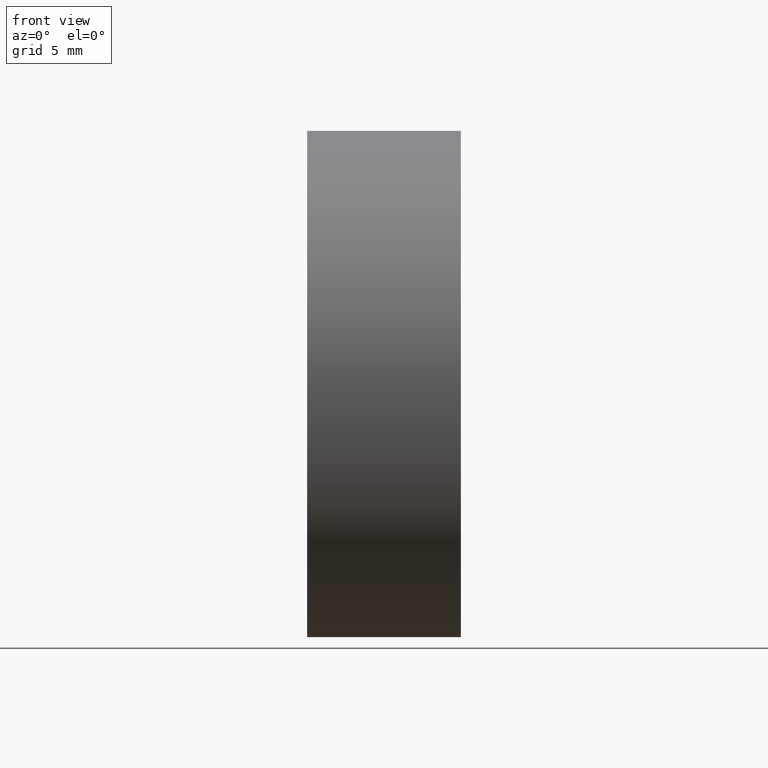
[diagram: clean part render]
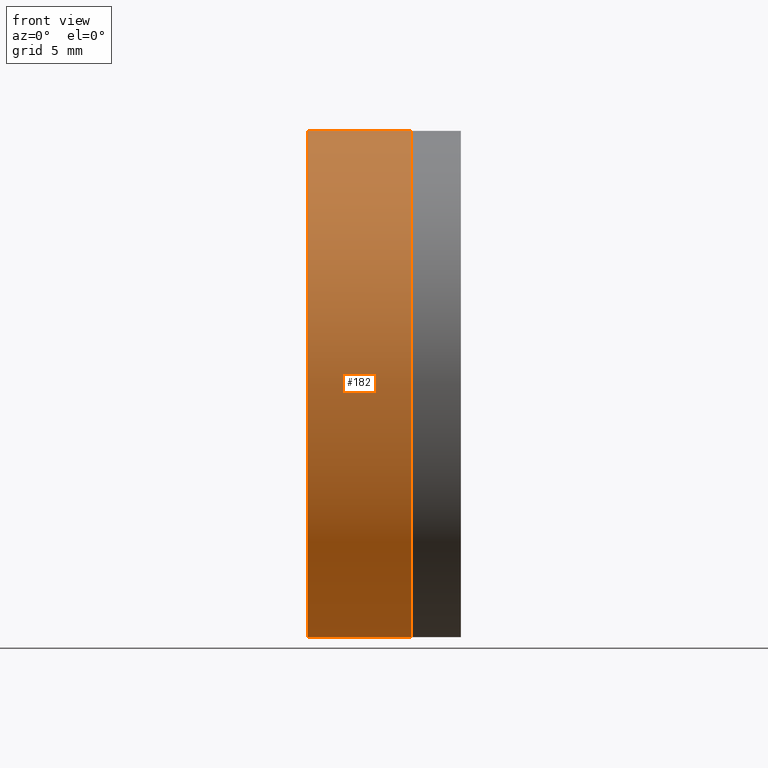
[diagram: same view with one face highlighted and labeled with its STEP entity id]
A machine part, front view. The second image highlights one B-rep face of the part: STEP entity #182.
In plain terms, the highlighted cylindrical surface (partial cylindrical patch) has radius 12.7 mm, axis along (-1, -0, 0).
Its self-contained STEP definition (entity closure, byte-faithful):
#7 = ORIENTED_EDGE ( 'NONE', *, *, #250, .T. ) ;
#12 = DIRECTION ( 'NONE',  ( -1.000000000000000000, -0.0000000000000000000, 1.836970198721029900E-016 ) ) ;
#17 = ORIENTED_EDGE ( 'NONE', *, *, #293, .F. ) ;
#21 = DIRECTION ( 'NONE',  ( -1.000000000000000000, -0.0000000000000000000, 1.836970198721029900E-016 ) ) ;
#28 = FACE_OUTER_BOUND ( 'NONE', #288, .T. ) ;
#29 = LINE ( 'NONE', #247, #332 ) ;
#35 = CARTESIAN_POINT ( 'NONE',  ( 257.3378375505981200, 0.0000000000000000000, -4.742210204816824600E-014 ) ) ;
#44 = VECTOR ( 'NONE', #21, 1000.000000000000000 ) ;
#47 = DIRECTION ( 'NONE',  ( -1.000000000000000000, -0.0000000000000000000, 1.836970198721029900E-016 ) ) ;
#67 = VERTEX_POINT ( 'NONE', #244 ) ;
#68 = DIRECTION ( 'NONE',  ( -1.000000000000000000, -0.0000000000000000000, 1.836970198721029900E-016 ) ) ;
#77 = DIRECTION ( 'NONE',  ( 0.0000000000000000000, 0.0000000000000000000, 1.000000000000000000 ) ) ;
#79 = DIRECTION ( 'NONE',  ( -1.000000000000000000, -0.0000000000000000000, 1.836970198721029900E-016 ) ) ;
#93 = CARTESIAN_POINT ( 'NONE',  ( 252.1199418144257200, 0.0000000000000000000, 12.69999999999998900 ) ) ;
#102 = CARTESIAN_POINT ( 'NONE',  ( 257.3378375505981200, 0.0000000000000000000, 12.69999999999999900 ) ) ;
#108 = CARTESIAN_POINT ( 'NONE',  ( -0.8160621761658039000, 0.0000000000000000000, 0.0000000000000000000 ) ) ;
#125 = AXIS2_PLACEMENT_3D ( 'NONE', #311, #68, #77 ) ;
#126 = CYLINDRICAL_SURFACE ( 'NONE', #323, 12.70000000000004500 ) ;
#143 = ORIENTED_EDGE ( 'NONE', *, *, #254, .F. ) ;
#163 = VERTEX_POINT ( 'NONE', #102 ) ;
#166 = DIRECTION ( 'NONE',  ( 1.878145495644174200E-016, 0.0000000000000000000, 1.000000000000000000 ) ) ;
#173 = CIRCLE ( 'NONE', #125, 12.70000000000004500 ) ;
#182 = ADVANCED_FACE ( 'NONE', ( #28 ), #126, .T. ) ;
#204 = DIRECTION ( 'NONE',  ( 0.0000000000000000000, 0.0000000000000000000, 1.000000000000000000 ) ) ;
#232 = LINE ( 'NONE', #241, #44 ) ;
#237 = AXIS2_PLACEMENT_3D ( 'NONE', #35, #79, #204 ) ;
#241 = CARTESIAN_POINT ( 'NONE',  ( -0.8160621761658015700, 0.0000000000000000000, 12.70000000000004500 ) ) ;
#244 = CARTESIAN_POINT ( 'NONE',  ( 252.1199418144257200, 1.555301434917142800E-015, -12.70000000000004500 ) ) ;
#247 = CARTESIAN_POINT ( 'NONE',  ( -0.8160621761658063400, 1.555301434917144300E-015, -12.70000000000004500 ) ) ;
#250 = EDGE_CURVE ( 'NONE', #271, #163, #303, .T. ) ;
#252 = EDGE_CURVE ( 'NONE', #163, #276, #232, .T. ) ;
#254 = EDGE_CURVE ( 'NONE', #271, #67, #29, .T. ) ;
#261 = ORIENTED_EDGE ( 'NONE', *, *, #252, .T. ) ;
#271 = VERTEX_POINT ( 'NONE', #337 ) ;
#276 = VERTEX_POINT ( 'NONE', #93 ) ;
#288 = EDGE_LOOP ( 'NONE', ( #143, #7, #261, #17 ) ) ;
#293 = EDGE_CURVE ( 'NONE', #67, #276, #173, .T. ) ;
#303 = CIRCLE ( 'NONE', #237, 12.70000000000004500 ) ;
#311 = CARTESIAN_POINT ( 'NONE',  ( 252.1199418144257200, 0.0000000000000000000, -4.646359015143001300E-014 ) ) ;
#323 = AXIS2_PLACEMENT_3D ( 'NONE', #108, #12, #166 ) ;
#332 = VECTOR ( 'NONE', #47, 1000.000000000000000 ) ;
#337 = CARTESIAN_POINT ( 'NONE',  ( 257.3378375505981200, 1.555301434917144300E-015, -12.70000000000009300 ) ) ;